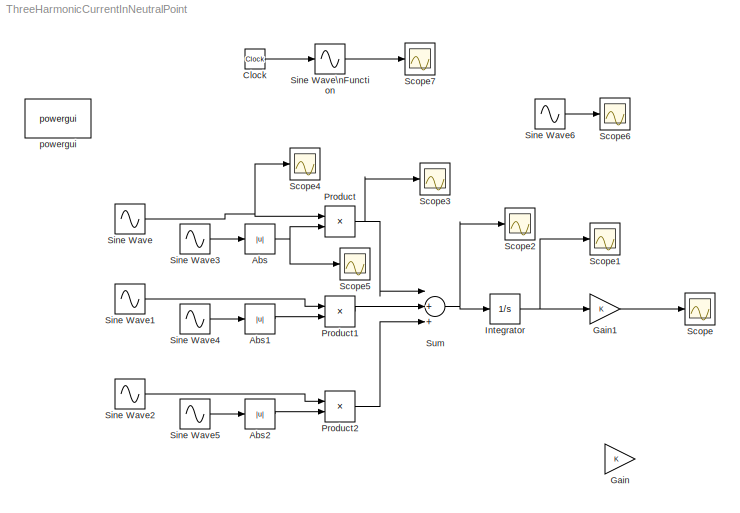
MODEL ThreeHarmonicCurrentInNeutralPoint
KIND model
CONFIG InitFcn = Phi=0.5*pi;
BLOCK [Abs] Abs
  SID = 11
  SaturateOnIntegerOverflow = off
BLOCK [Abs] Abs1
  SID = 12
  SaturateOnIntegerOverflow = off
BLOCK [Abs] Abs2
  SID = 13
  SaturateOnIntegerOverflow = off
BLOCK [Clock] Clock
  SID = 30
BLOCK [Gain] Gain
  OutDataTypeStr = Inherit: Inherit via internal rule
  ParamDataTypeStr = Inherit: Inherit via internal rule
  SID = 20
  SaturateOnIntegerOverflow = off
BLOCK [Gain] Gain1
  OutDataTypeStr = Inherit: Inherit via internal rule
  ParamDataTypeStr = Inherit: Inherit via internal rule
  SID = 21
  SaturateOnIntegerOverflow = off
BLOCK [Integrator] Integrator
  Ports = [1, 1]
  SID = 18
BLOCK [Product] Product
  InputSameDT = off
  OutDataTypeStr = Inherit: Inherit via internal rule
  Ports = [2, 1]
  SID = 14
  SaturateOnIntegerOverflow = off
BLOCK [Product] Product1
  InputSameDT = off
  OutDataTypeStr = Inherit: Inherit via internal rule
  Ports = [2, 1]
  SID = 15
  SaturateOnIntegerOverflow = off
BLOCK [Product] Product2
  InputSameDT = off
  OutDataTypeStr = Inherit: Inherit via internal rule
  Ports = [2, 1]
  SID = 16
  SaturateOnIntegerOverflow = off
BLOCK [Scope] Scope
  DataFormat = StructureWithTime
  Floating = off
  LimitDataPoints = off
  NumInputPorts = 1
  Ports = [1]
  SID = 19
  SampleTime = 0
  ShowLegends = off
BLOCK [Scope] Scope1
  DataFormat = StructureWithTime
  Floating = off
  LimitDataPoints = off
  NumInputPorts = 1
  Ports = [1]
  SID = 22
  SampleTime = 0
  SaveName = ScopeData1
  ShowLegends = off
  ZoomMode = xonly
BLOCK [Scope] Scope2
  DataFormat = StructureWithTime
  Floating = off
  LimitDataPoints = off
  NumInputPorts = 1
  Ports = [1]
  SID = 23
  SampleTime = 0
  SaveName = ScopeData2
  SaveToWorkspace = on
  ShowLegends = off
  ZoomMode = xonly
BLOCK [Scope] Scope3
  DataFormat = StructureWithTime
  Floating = off
  LimitDataPoints = off
  NumInputPorts = 1
  Ports = [1]
  SID = 24
  SampleTime = 0
  SaveName = ScopeData3
  ShowLegends = off
  ZoomMode = xonly
BLOCK [Scope] Scope4
  DataFormat = StructureWithTime
  Floating = off
  LimitDataPoints = off
  NumInputPorts = 1
  Ports = [1]
  SID = 25
  SampleTime = 0
  SaveName = ScopeData4
  ShowLegends = off
  ZoomMode = xonly
BLOCK [Scope] Scope5
  DataFormat = StructureWithTime
  Floating = off
  LimitDataPoints = off
  NumInputPorts = 1
  Ports = [1]
  SID = 26
  SampleTime = 0
  SaveName = ScopeData5
  ShowLegends = off
  ZoomMode = xonly
BLOCK [Scope] Scope6
  DataFormat = StructureWithTime
  Floating = off
  LimitDataPoints = off
  NumInputPorts = 1
  Ports = [1]
  SID = 28
  SampleTime = 0
  SaveName = ScopeData6
  ShowLegends = off
  ZoomMode = xonly
BLOCK [Scope] Scope7
  DataFormat = StructureWithTime
  Floating = off
  LimitDataPoints = off
  NumInputPorts = 1
  Ports = [1]
  SID = 31
  SampleTime = 0
  SaveName = ScopeData7
  ShowLegends = off
  ZoomMode = xonly
BLOCK [Sin] Sine Wave
  Frequency = 40*2*pi
  Ports = [0, 1]
  SID = 2
BLOCK [Sin] Sine Wave1
  Frequency = 40*2*pi
  Phase = -2*pi/3
  Ports = [0, 1]
  SID = 3
  SampleTime = 0
BLOCK [Sin] Sine Wave2
  Frequency = 40*2*pi
  Phase = 2*pi/3
  Ports = [0, 1]
  SID = 4
  SampleTime = 0
BLOCK [Sin] Sine Wave3
  Frequency = 40*2*pi
  Phase = Phi
  Ports = [0, 1]
  SID = 8
  SampleTime = 0
BLOCK [Sin] Sine Wave4
  Frequency = 40*2*pi
  Phase = Phi-2*pi/3
  Ports = [0, 1]
  SID = 9
  SampleTime = 0
BLOCK [Sin] Sine Wave5
  Frequency = 40*2*pi
  Phase = Phi+2*pi/3
  Ports = [0, 1]
  SID = 10
  SampleTime = 0
BLOCK [Sin] Sine Wave6
  Ports = [0, 1]
  SID = 27
  SampleTime = 0
BLOCK [Sin] Sine Wave\nFunction
  Frequency = 100*pi
  Ports = [1, 1]
  SID = 29
  SampleTime = 0
  TimeSource = Use external signal
BLOCK [Sum] Sum
  InputSameDT = off
  Inputs = |+++
  OutDataTypeStr = Inherit: Inherit via internal rule
  Ports = [3, 1]
  SID = 17
  SaturateOnIntegerOverflow = off
BLOCK [Reference] powergui  REF=powerlib/powergui
  DisableRonSwitches = off
  DisableSnubberDevices = off
  DisableVfSwitches = off
  DisplayEquations = off
  DisplayStyle = 2
  EnableUseOfTLC = off
  ErrMax = 1e-4
  FreqAxis = off
  FunctionMessages = off
  HookPort = off
  Interpol = off
  Iterations = 50
  MaxFrequency = 1000
  Pbase = 100e6
  Ports = []
  Priority = 1
  ResistiveCurrentMeasurement = off
  RestoreLinks = warning
  SID = 1
  SPID = off
  SampleTime = 50e-6
  ShowGrid = off
  SolverType = Tustin
  SourceBlock = powerlib/powergui
  SourceType = PSB option menu block
  StartTime = 0.0
  SwTol = 0
  UnitsV = kV
  UnitsW = MW
  UserData = DataTag0
  UserDataPersistent = on
  Xlog = on
  Ylog = off
  ZoomFFT = off
  cycles = 1
  display = off
  echomessages = off
  frequency = 60
  frequencyindice = 60
  frequencyindicesteady = 1
  fundamental = 120
  methode = off
  save = off
  structure = ScopeData2
  variable = ZData
  x0status = blocks
LINE Abs1:1 -> Product1:2
LINE Abs2:1 -> Product2:2
NET Abs:1 -> Product:2, Scope5:1
LINE Clock:1 -> Sine Wave\nFunction:1
LINE Gain1:1 -> Scope:1
NET Integrator:1 -> Gain1:1, Scope1:1
LINE Product1:1 -> Sum:2
LINE Product2:1 -> Sum:3
NET Product:1 -> Scope3:1, Sum:1
LINE Sine Wave1:1 -> Product1:1
LINE Sine Wave2:1 -> Product2:1
LINE Sine Wave3:1 -> Abs:1
LINE Sine Wave4:1 -> Abs1:1
LINE Sine Wave5:1 -> Abs2:1
LINE Sine Wave6:1 -> Scope6:1
NET Sine Wave:1 -> Product:1, Scope4:1
LINE Sine Wave\nFunction:1 -> Scope7:1
NET Sum:1 -> Integrator:1, Scope2:1
note: NET lines group one-source signal fan-out (src -> all destinations, sorted); 1:1 wires keep LINE
